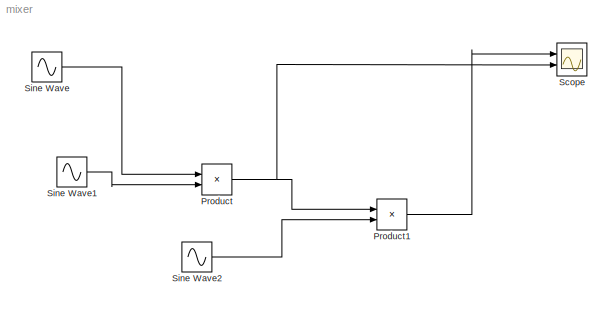
MODEL mixer
KIND model
BLOCK [Product] Product
  InputSameDT = off
  OutDataType = fixdt(1, 16)
  OutDataTypeMode = Inherit via internal rule
  OutDataTypeStr = Inherit: Inherit via internal rule
  OutScaling = 2^0
  Ports = [2, 1]
  SID = 4
  SaturateOnIntegerOverflow = off
BLOCK [Product] Product1
  InputSameDT = off
  OutDataType = fixdt(1, 16)
  OutDataTypeMode = Inherit via internal rule
  OutDataTypeStr = Inherit: Inherit via internal rule
  OutScaling = 2^0
  Ports = [2, 1]
  SID = 6
  SaturateOnIntegerOverflow = off
BLOCK [Scope] Scope
  DataFormat = StructureWithTime
  Floating = off
  NumInputPorts = 2
  Ports = [2]
  SID = 2
  SampleTime = 0
  YMax = 5~5
  YMin = -5~-5
BLOCK [Sin] Sine Wave
  Amplitude = 1
  Bias = 0
  Frequency = 2*pi
  Offset = 0
  Phase = 0
  Ports = [0, 1]
  SID = 1
  SampleTime = .001
  Samples = 10
BLOCK [Sin] Sine Wave1
  Amplitude = 1
  Bias = 0
  Frequency = 1
  Offset = 0
  Phase = 0
  Ports = [0, 1]
  SID = 5
  SampleTime = .001
  Samples = 10
BLOCK [Sin] Sine Wave2
  Amplitude = 1
  Bias = 0
  Frequency = 1
  Offset = 0
  Phase = pi/2
  Ports = [0, 1]
  SID = 7
  SampleTime = .001
  Samples = 10
LINE Product1:1 -> Scope:1
NET Product:1 -> Product1:1, Scope:2
LINE Sine Wave1:1 -> Product:2
LINE Sine Wave2:1 -> Product1:2
LINE Sine Wave:1 -> Product:1
note: NET lines group one-source signal fan-out (src -> all destinations, sorted); 1:1 wires keep LINE
